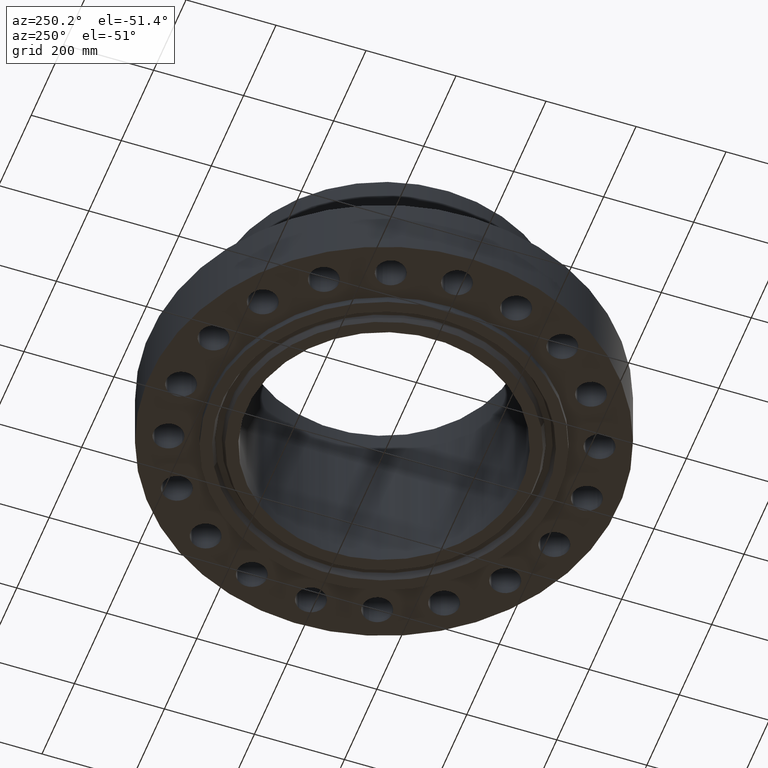
[diagram: clean part render]
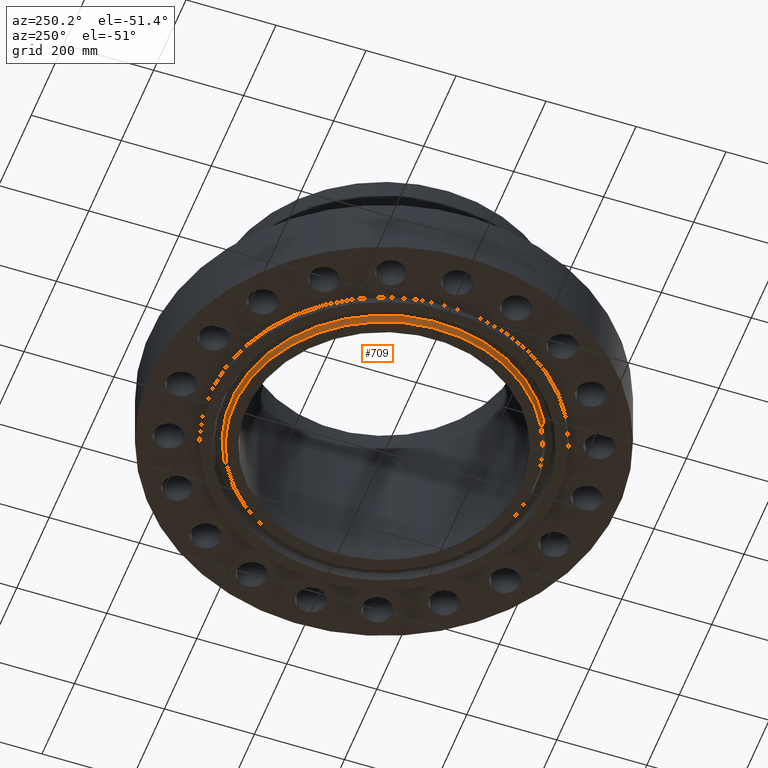
[diagram: same view with one face highlighted and labeled with its STEP entity id]
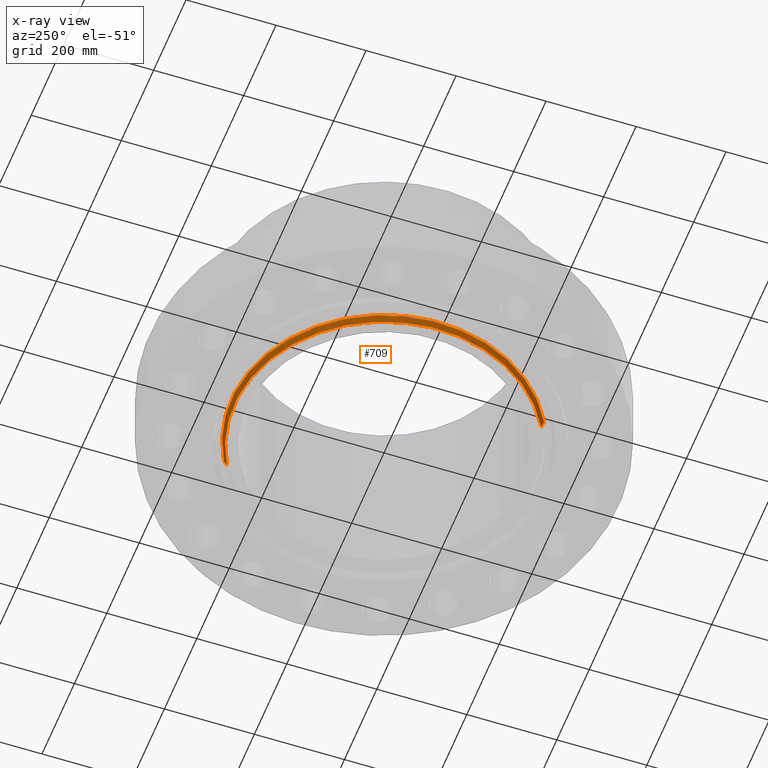
[diagram: x-ray of the same camera — body ghosted, the highlighted face saturated]
A machine part, auxiliary view. The second image highlights one B-rep face of the part: STEP entity #709.
The next image is the same camera in x-ray: the body ghosted, the highlighted face saturated — about 0% of this face is hidden behind the body in this view.
In plain terms, the highlighted conical surface has half-angle 23 deg.
Its self-contained STEP definition (entity closure, byte-faithful):
#658=AXIS2_PLACEMENT_3D('Circle Axis2P3D',#656,#657,$) ;
#682=AXIS2_PLACEMENT_3D('Cone Axis2P3D',#679,#680,#681) ;
#693=AXIS2_PLACEMENT_3D('Circle Axis2P3D',#691,#692,$) ;
#656=CARTESIAN_POINT('Axis2P3D Location',(0.,0.,-0.625000000003)) ;
#660=CARTESIAN_POINT('Vertex',(-6.27735828974,-11.4906272742,-0.625000000003)) ;
#662=CARTESIAN_POINT('Vertex',(6.27735828974,11.4906272742,-0.625000000003)) ;
#679=CARTESIAN_POINT('Axis2P3D Location',(0.,0.,-0.625000000003)) ;
#684=CARTESIAN_POINT('Line Origine',(-6.3351258422,-11.5963700697,-0.341135636962)) ;
#688=CARTESIAN_POINT('Vertex',(-6.39289339467,-11.7021128652,-0.0572712739222)) ;
#691=CARTESIAN_POINT('Axis2P3D Location',(0.,0.,-0.0572712739222)) ;
#695=CARTESIAN_POINT('Vertex',(6.39289339467,11.7021128652,-0.0572712739222)) ;
#698=CARTESIAN_POINT('Line Origine',(6.3351258422,11.5963700697,-0.341135636962)) ;
#657=DIRECTION('Axis2P3D Direction',(0.,0.,-0.0393700787402)) ;
#680=DIRECTION('Axis2P3D Direction',(-0.,-0.,0.0393700787402)) ;
#681=DIRECTION('Axis2P3D XDirection',(-0.0188750212049,-0.0345504945626,0.)) ;
#685=DIRECTION('Vector Direction',(-0.00737505833565,-0.0134999537303,0.0362403485611)) ;
#692=DIRECTION('Axis2P3D Direction',(-0.,0.,0.0393700787402)) ;
#699=DIRECTION('Vector Direction',(0.00737505833565,0.0134999537303,0.0362403485611)) ;
#686=VECTOR('Line Direction',#685,0.0393700787402) ;
#700=VECTOR('Line Direction',#699,0.0393700787402) ;
#704=ORIENTED_EDGE('',*,*,#664,.F.) ;
#705=ORIENTED_EDGE('',*,*,#690,.T.) ;
#706=ORIENTED_EDGE('',*,*,#697,.T.) ;
#707=ORIENTED_EDGE('',*,*,#702,.F.) ;
#709=ADVANCED_FACE('PartBody',(#708),#683,.T.) ;
#659=CIRCLE('generated circle',#658,13.0935000001) ;
#694=CIRCLE('generated circle',#693,13.3344865467) ;
#683=CONICAL_SURFACE('Cone',#682,13.0935000001,0.401425727959) ;
#664=EDGE_CURVE('',#661,#663,#659,.T.) ;
#690=EDGE_CURVE('',#661,#689,#687,.T.) ;
#697=EDGE_CURVE('',#689,#696,#694,.F.) ;
#702=EDGE_CURVE('',#663,#696,#701,.T.) ;
#703=EDGE_LOOP('',(#704,#705,#706,#707)) ;
#708=FACE_OUTER_BOUND('',#703,.T.) ;
#687=LINE('Line',#684,#686) ;
#701=LINE('Line',#698,#700) ;
#661=VERTEX_POINT('',#660) ;
#663=VERTEX_POINT('',#662) ;
#689=VERTEX_POINT('',#688) ;
#696=VERTEX_POINT('',#695) ;